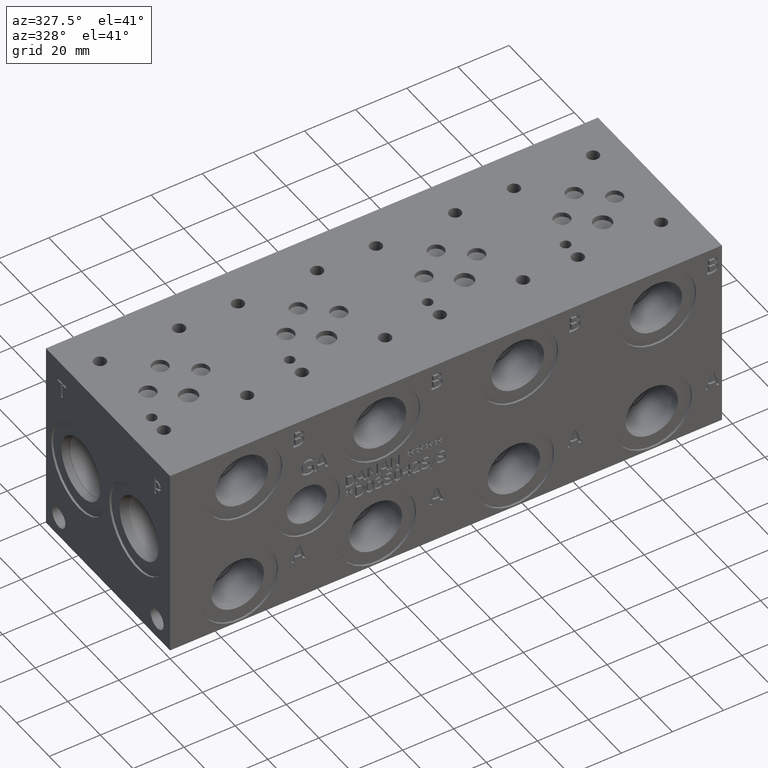
[diagram: clean part render]
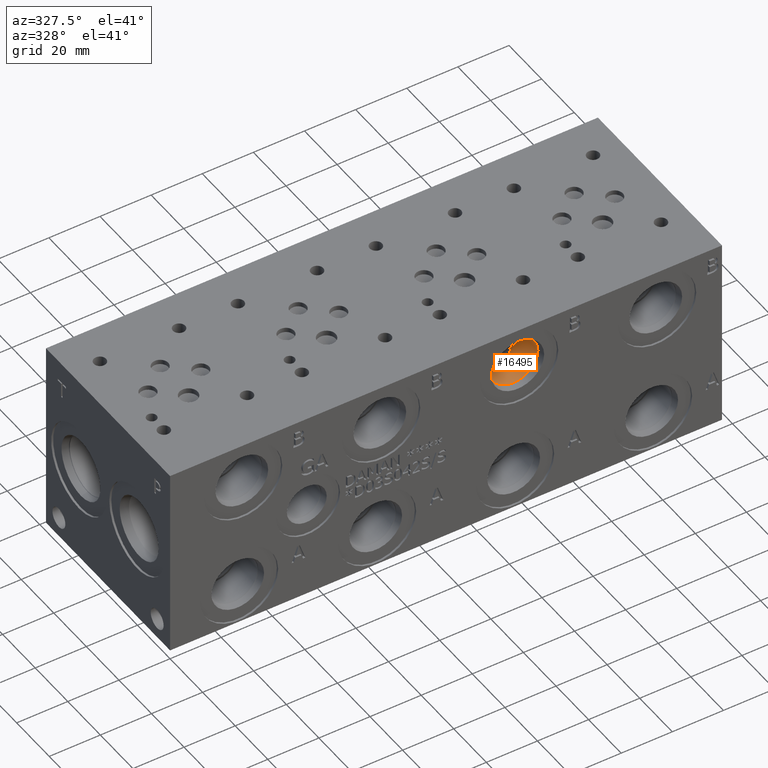
[diagram: same view with one face highlighted and labeled with its STEP entity id]
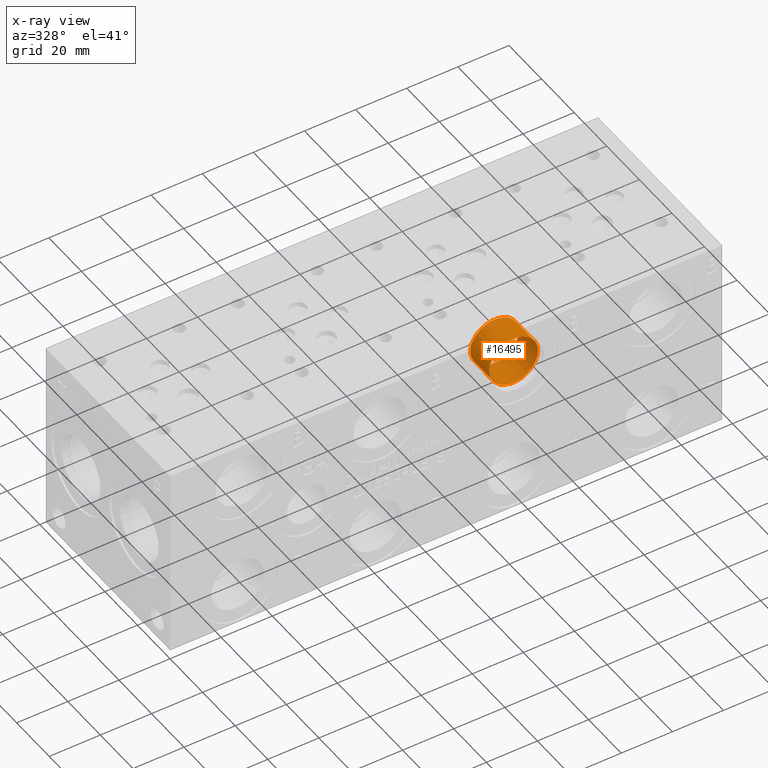
[diagram: x-ray of the same camera — body ghosted, the highlighted face saturated]
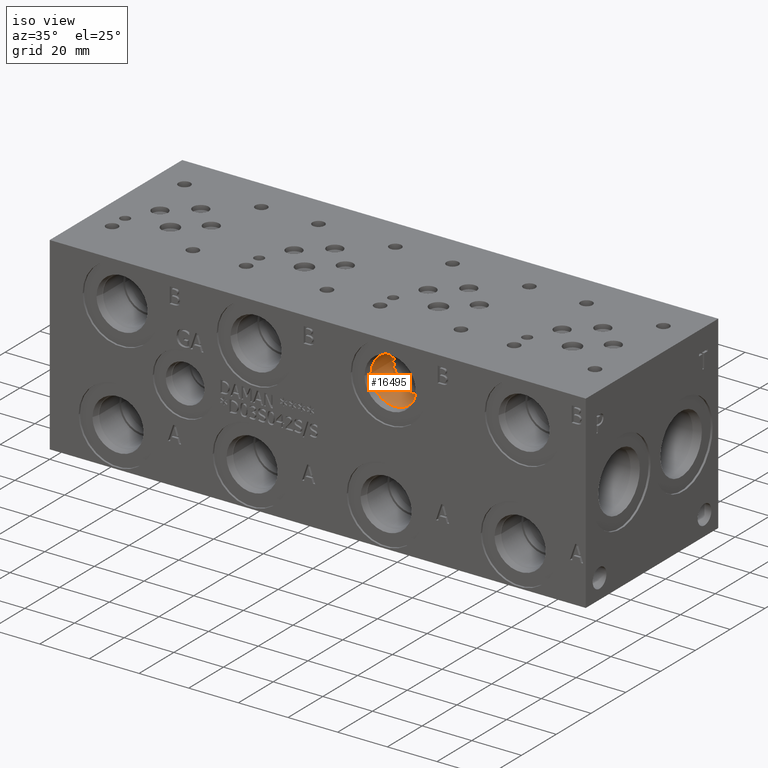
[diagram: same view with one face highlighted and labeled with its STEP entity id]
A machine part, auxiliary view. The second image highlights one B-rep face of the part: STEP entity #16495.
The next image is the same camera in x-ray: the body ghosted, the highlighted face saturated — about 0% of this face is hidden behind the body in this view.
A second angle (iso view) of the same face is appended — the face is thin or edge-on in the first view.
In plain terms, the highlighted cylindrical surface (bore or boss wall) has radius 9.525 mm, axis along (0, -1, 0).
Its self-contained STEP definition (entity closure, byte-faithful):
#136=CYLINDRICAL_SURFACE('',#17312,9.525);
#321=CIRCLE('',#17218,9.525);
#378=CIRCLE('',#17309,9.525);
#379=CIRCLE('',#17310,9.525);
#2153=FACE_OUTER_BOUND('',#3108,.T.);
#3108=EDGE_LOOP('',(#13693,#13694,#13695,#13696,#13697));
#4650=LINE('',#27935,#6073);
#6073=VECTOR('',#20286,9.525);
#7403=VERTEX_POINT('',#27744);
#7466=VERTEX_POINT('',#27928);
#7467=VERTEX_POINT('',#27929);
#9565=EDGE_CURVE('',#7403,#7403,#321,.T.);
#9651=EDGE_CURVE('',#7466,#7467,#378,.T.);
#9652=EDGE_CURVE('',#7467,#7466,#379,.T.);
#9654=EDGE_CURVE('',#7403,#7467,#4650,.T.);
#13693=ORIENTED_EDGE('',*,*,#9565,.T.);
#13694=ORIENTED_EDGE('',*,*,#9654,.T.);
#13695=ORIENTED_EDGE('',*,*,#9651,.F.);
#13696=ORIENTED_EDGE('',*,*,#9652,.F.);
#13697=ORIENTED_EDGE('',*,*,#9654,.F.);
#16495=ADVANCED_FACE('',(#2153),#136,.F.);
#17218=AXIS2_PLACEMENT_3D('',#27746,#20067,#20068);
#17309=AXIS2_PLACEMENT_3D('',#27930,#20278,#20279);
#17310=AXIS2_PLACEMENT_3D('',#27931,#20280,#20281);
#17312=AXIS2_PLACEMENT_3D('',#27934,#20284,#20285);
#20067=DIRECTION('center_axis',(0.,-1.,0.));
#20068=DIRECTION('ref_axis',(1.,0.,0.));
#20278=DIRECTION('center_axis',(0.,-1.,0.));
#20279=DIRECTION('ref_axis',(1.,0.,0.));
#20280=DIRECTION('center_axis',(0.,-1.,0.));
#20281=DIRECTION('ref_axis',(1.,0.,0.));
#20284=DIRECTION('center_axis',(0.,-1.,0.));
#20285=DIRECTION('ref_axis',(1.,0.,0.));
#20286=DIRECTION('',(0.,1.,0.));
#27744=CARTESIAN_POINT('',(127.,3.4036,60.325));
#27746=CARTESIAN_POINT('Origin',(136.525,3.4036,60.325));
#27928=CARTESIAN_POINT('',(146.05,15.0622,60.325));
#27929=CARTESIAN_POINT('',(127.,15.0622,60.325));
#27930=CARTESIAN_POINT('Origin',(136.525,15.0622,60.325));
#27931=CARTESIAN_POINT('Origin',(136.525,15.0622,60.325));
#27934=CARTESIAN_POINT('Origin',(136.525,7.5311,60.325));
#27935=CARTESIAN_POINT('',(127.,7.5311,60.325));